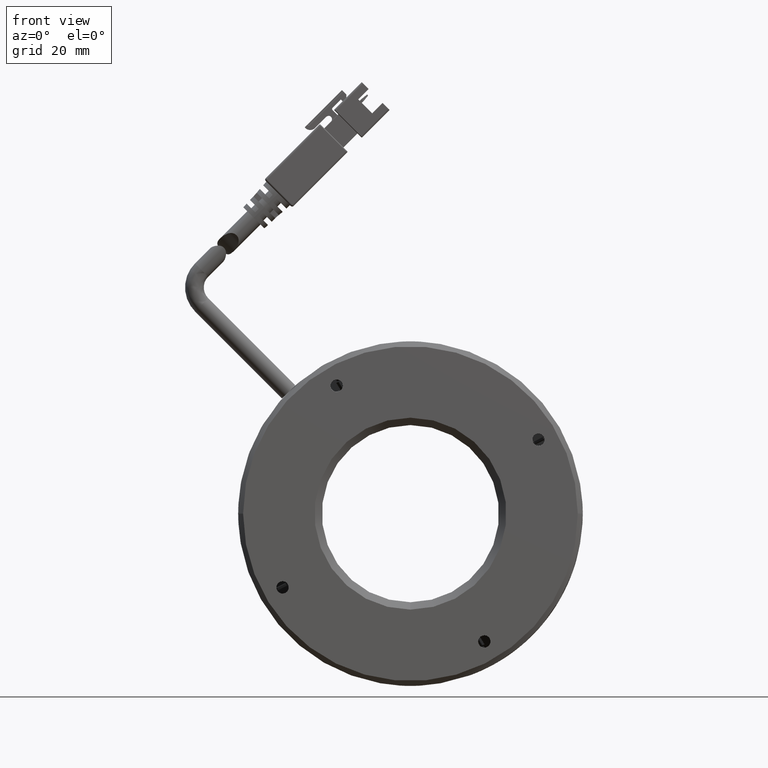
[diagram: clean part render]
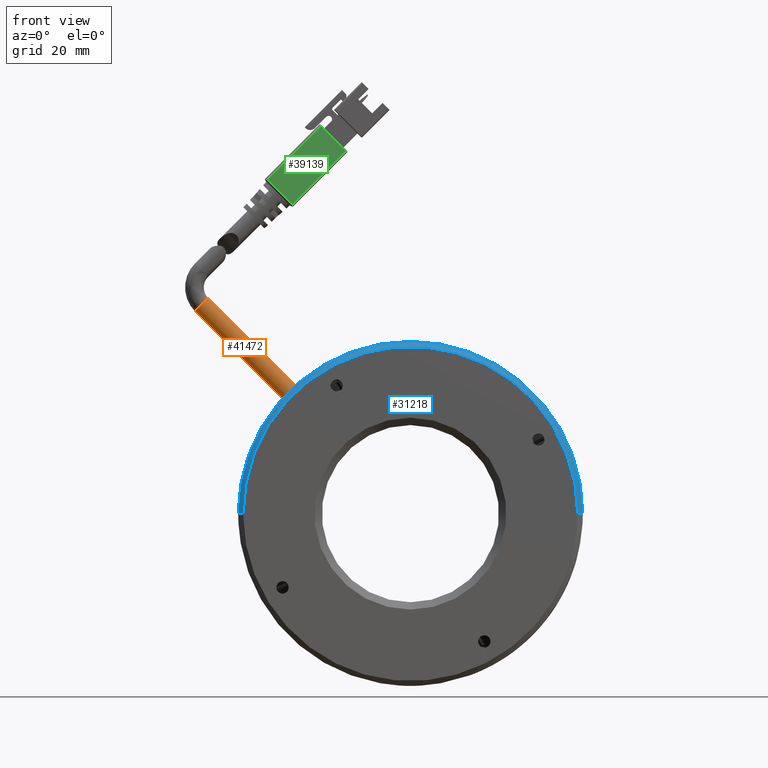
[diagram: same view with three faces highlighted in distinct colors, each labeled with its STEP entity id]
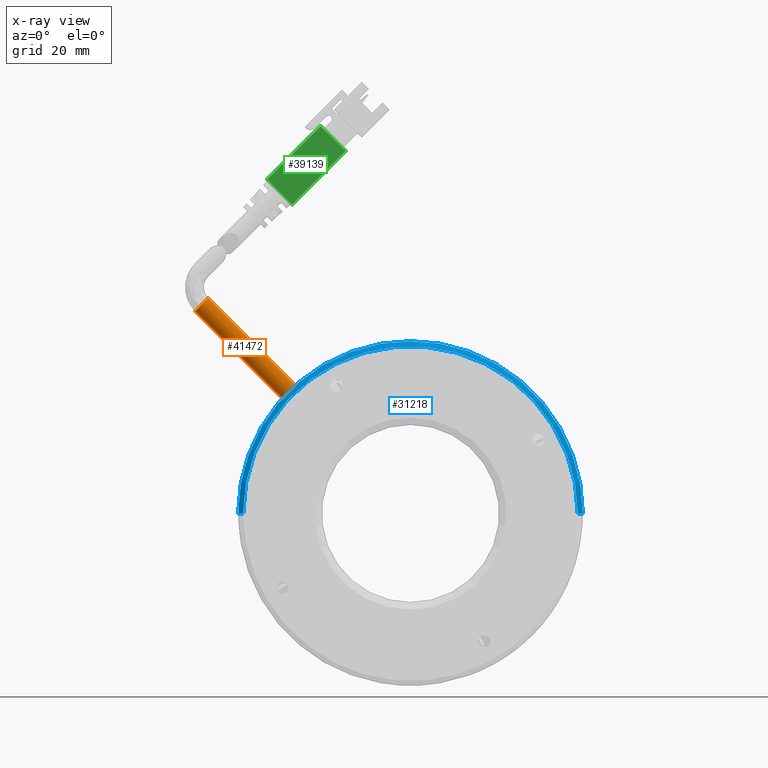
[diagram: x-ray of the same camera — body ghosted, the three highlighted faces saturated]
A machine part, front view with three faces highlighted in distinct colors.
The next image is the same camera in x-ray (body ghosted, the three faces saturated) — at least one of them is partly hidden behind the body in this view.
Their STEP definitions:

[orange] entity #41472 — the highlighted cylindrical surface (edge-blend (fillet) strip) has radius 1.9 mm, axis along (0.7071, 0, -0.7071).
#3004 = LINE ( 'NONE', #5040, #43240 ) ;
#3308 = EDGE_CURVE ( 'NONE', #68246, #29050, #66750, .T. ) ;
#4696 = DIRECTION ( 'NONE',  ( -0.7071067811865502400, 0.0000000000000000000, -0.7071067811865448000 ) ) ;
#4783 = CIRCLE ( 'NONE', #49398, 1.899999999999997700 ) ;
#5040 = CARTESIAN_POINT ( 'NONE',  ( -80.99367331583184200, -23.18693679055956400, 27.98047850198358000 ) ) ;
#7504 = CARTESIAN_POINT ( 'NONE',  ( -78.30666754732295900, -23.18693679055956400, 30.66748427049244800 ) ) ;
#8804 = CYLINDRICAL_SURFACE ( 'NONE', #35499, 1.899999999999997700 ) ;
#10492 = EDGE_CURVE ( 'NONE', #28485, #101849, #4783, .T. ) ;
#14499 = LINE ( 'NONE', #7504, #97623 ) ;
#15486 = DIRECTION ( 'NONE',  ( 0.7071067811865435800, 4.906538933385487800E-018, -0.7071067811865514600 ) ) ;
#16854 = EDGE_LOOP ( 'NONE', ( #72177, #80414, #34802, #66097 ) ) ;
#28485 = VERTEX_POINT ( 'NONE', #83220 ) ;
#29050 = VERTEX_POINT ( 'NONE', #33106 ) ;
#33106 = CARTESIAN_POINT ( 'NONE',  ( -60.62899801765937700, -23.18693679055956400, 12.98981474082866500 ) ) ;
#34802 = ORIENTED_EDGE ( 'NONE', *, *, #75086, .T. ) ;
#35499 = AXIS2_PLACEMENT_3D ( 'NONE', #83863, #92634, #4696 ) ;
#41472 = ADVANCED_FACE ( 'NONE', ( #80554 ), #8804, .T. ) ;
#43240 = VECTOR ( 'NONE', #69352, 1000.000000000000000 ) ;
#49398 = AXIS2_PLACEMENT_3D ( 'NONE', #95524, #95313, #95299 ) ;
#66097 = ORIENTED_EDGE ( 'NONE', *, *, #3308, .T. ) ;
#66750 = CIRCLE ( 'NONE', #81091, 1.900000000000001200 ) ;
#68246 = VERTEX_POINT ( 'NONE', #85190 ) ;
#68316 = DIRECTION ( 'NONE',  ( -0.7071067811865525700, 0.0000000000000000000, -0.7071067811865424700 ) ) ;
#68639 = DIRECTION ( 'NONE',  ( -0.7071067811865435800, -4.906538933385487800E-018, 0.7071067811865514600 ) ) ;
#68985 = CARTESIAN_POINT ( 'NONE',  ( -61.97250090191382600, -23.18693679055956400, 11.64631185657422700 ) ) ;
#69352 = DIRECTION ( 'NONE',  ( 0.7071067811865435800, 4.906538933385487800E-018, -0.7071067811865514600 ) ) ;
#72177 = ORIENTED_EDGE ( 'NONE', *, *, #101175, .F. ) ;
#75086 = EDGE_CURVE ( 'NONE', #101849, #68246, #3004, .T. ) ;
#80414 = ORIENTED_EDGE ( 'NONE', *, *, #10492, .T. ) ;
#80554 = FACE_OUTER_BOUND ( 'NONE', #16854, .T. ) ;
#81091 = AXIS2_PLACEMENT_3D ( 'NONE', #68985, #68639, #68316 ) ;
#82251 = CARTESIAN_POINT ( 'NONE',  ( -80.99367331583184200, -23.18693679055956700, 27.98047850198357300 ) ) ;
#83220 = CARTESIAN_POINT ( 'NONE',  ( -78.30666754732295900, -23.18693679055956700, 30.66748427049244100 ) ) ;
#83863 = CARTESIAN_POINT ( 'NONE',  ( -79.65017043157740800, -23.18693679055956400, 29.32398138623801400 ) ) ;
#85190 = CARTESIAN_POINT ( 'NONE',  ( -63.31600378616826700, -23.18693679055956400, 10.30280897231980000 ) ) ;
#92634 = DIRECTION ( 'NONE',  ( 0.7071067811865435800, 4.906538933385487800E-018, -0.7071067811865514600 ) ) ;
#95299 = DIRECTION ( 'NONE',  ( -0.7071067811865502400, 0.0000000000000000000, -0.7071067811865448000 ) ) ;
#95313 = DIRECTION ( 'NONE',  ( 0.7071067811865435800, 4.906538933385487800E-018, -0.7071067811865514600 ) ) ;
#95524 = CARTESIAN_POINT ( 'NONE',  ( -79.65017043157740800, -23.18693679055956400, 29.32398138623801000 ) ) ;
#97623 = VECTOR ( 'NONE', #15486, 1000.000000000000000 ) ;
#101175 = EDGE_CURVE ( 'NONE', #28485, #29050, #14499, .T. ) ;
#101849 = VERTEX_POINT ( 'NONE', #82251 ) ;

[blue] entity #31218 — the highlighted conical surface has half-angle 45 deg.
#4815 = VERTEX_POINT ( 'NONE', #88254 ) ;
#5184 = AXIS2_PLACEMENT_3D ( 'NONE', #65036, #73083, #57321 ) ;
#6065 = LINE ( 'NONE', #52131, #89143 ) ;
#6084 = EDGE_CURVE ( 'NONE', #40889, #4815, #35406, .T. ) ;
#10648 = EDGE_CURVE ( 'NONE', #37887, #54056, #19805, .T. ) ;
#16024 = AXIS2_PLACEMENT_3D ( 'NONE', #70412, #22225, #78519 ) ;
#19805 = CIRCLE ( 'NONE', #47359, 34.00000000000004300 ) ;
#21914 = DIRECTION ( 'NONE',  ( -0.0000000000000000000, -1.000000000000000000, -0.0000000000000000000 ) ) ;
#22225 = DIRECTION ( 'NONE',  ( -0.0000000000000000000, -1.000000000000000000, -0.0000000000000000000 ) ) ;
#25239 = ORIENTED_EDGE ( 'NONE', *, *, #42431, .T. ) ;
#30640 = ORIENTED_EDGE ( 'NONE', *, *, #102971, .T. ) ;
#31218 = ADVANCED_FACE ( 'NONE', ( #95363 ), #63935, .T. ) ;
#31653 = ORIENTED_EDGE ( 'NONE', *, *, #10648, .T. ) ;
#32247 = CARTESIAN_POINT ( 'NONE',  ( -72.22376356038468300, -25.73693679055961100, -13.10242548495533300 ) ) ;
#35406 = CIRCLE ( 'NONE', #64011, 35.00000000000000000 ) ;
#37887 = VERTEX_POINT ( 'NONE', #70057 ) ;
#40612 = CARTESIAN_POINT ( 'NONE',  ( -37.22376356038467500, -25.73693679055961100, -13.10242548495533300 ) ) ;
#40889 = VERTEX_POINT ( 'NONE', #101135 ) ;
#42431 = EDGE_CURVE ( 'NONE', #4815, #94470, #73777, .T. ) ;
#45373 = EDGE_LOOP ( 'NONE', ( #31653, #30640, #85228, #25239, #63888 ) ) ;
#47359 = AXIS2_PLACEMENT_3D ( 'NONE', #87630, #87513, #87502 ) ;
#52131 = CARTESIAN_POINT ( 'NONE',  ( -72.22376356038468300, -25.73693679055961400, -13.10242548495533300 ) ) ;
#54056 = VERTEX_POINT ( 'NONE', #94689 ) ;
#57321 = DIRECTION ( 'NONE',  ( -1.000000000000000000, 0.0000000000000000000, 0.0000000000000000000 ) ) ;
#57470 = VECTOR ( 'NONE', #69428, 1000.000000000000000 ) ;
#61394 = CARTESIAN_POINT ( 'NONE',  ( -2.223763560384672800, -25.73693679055961400, -13.10242548495532900 ) ) ;
#63888 = ORIENTED_EDGE ( 'NONE', *, *, #78407, .F. ) ;
#63935 = CONICAL_SURFACE ( 'NONE', #5184, 35.00000000000000000, 0.7853981633974422800 ) ;
#64011 = AXIS2_PLACEMENT_3D ( 'NONE', #40612, #21914, #81677 ) ;
#65036 = CARTESIAN_POINT ( 'NONE',  ( -37.22376356038467500, -25.73693679055961400, -13.10242548495533300 ) ) ;
#69428 = DIRECTION ( 'NONE',  ( 0.7071067811865432400, 0.7071067811865517900, 8.659560562354881100E-017 ) ) ;
#70057 = CARTESIAN_POINT ( 'NONE',  ( -71.22376356038472500, -26.73693679055958200, -13.10242548495533300 ) ) ;
#70412 = CARTESIAN_POINT ( 'NONE',  ( -37.22376356038467500, -25.73693679055961100, -13.10242548495533300 ) ) ;
#73083 = DIRECTION ( 'NONE',  ( 2.478176394252581700E-017, 1.000000000000000000, 0.0000000000000000000 ) ) ;
#73777 = CIRCLE ( 'NONE', #16024, 35.00000000000000000 ) ;
#78407 = EDGE_CURVE ( 'NONE', #37887, #94470, #6065, .T. ) ;
#78519 = DIRECTION ( 'NONE',  ( 0.0000000000000000000, -9.912705577010326800E-017, 1.000000000000000000 ) ) ;
#81336 = LINE ( 'NONE', #61394, #57470 ) ;
#81677 = DIRECTION ( 'NONE',  ( -7.930164461608261400E-016, -9.912705577010326800E-017, 1.000000000000000000 ) ) ;
#84799 = DIRECTION ( 'NONE',  ( -0.7071067811865432400, 0.7071067811865517900, 0.0000000000000000000 ) ) ;
#85228 = ORIENTED_EDGE ( 'NONE', *, *, #6084, .T. ) ;
#87502 = DIRECTION ( 'NONE',  ( -1.000000000000000000, 0.0000000000000000000, 0.0000000000000000000 ) ) ;
#87513 = DIRECTION ( 'NONE',  ( 2.478176394252581700E-017, 1.000000000000000000, 0.0000000000000000000 ) ) ;
#87630 = CARTESIAN_POINT ( 'NONE',  ( -37.22376356038467500, -26.73693679055958200, -13.10242548495533300 ) ) ;
#88254 = CARTESIAN_POINT ( 'NONE',  ( -37.22376356038466800, -25.73693679055961100, 21.89757451504467100 ) ) ;
#89143 = VECTOR ( 'NONE', #84799, 1000.000000000000000 ) ;
#94470 = VERTEX_POINT ( 'NONE', #32247 ) ;
#94689 = CARTESIAN_POINT ( 'NONE',  ( -3.223763560384632000, -26.73693679055958200, -13.10242548495532900 ) ) ;
#95363 = FACE_OUTER_BOUND ( 'NONE', #45373, .T. ) ;
#101135 = CARTESIAN_POINT ( 'NONE',  ( -2.223763560384672800, -25.73693679055961100, -13.10242548495532900 ) ) ;
#102971 = EDGE_CURVE ( 'NONE', #54056, #40889, #81336, .T. ) ;

[green] entity #39139 — the highlighted planar face has unit normal (-0, 1, -0).
#114 = CARTESIAN_POINT ( 'NONE',  ( -66.35656294527018400, -28.18693679055955700, 54.77982550895365000 ) ) ;
#3200 = ORIENTED_EDGE ( 'NONE', *, *, #4503, .F. ) ;
#4503 = EDGE_CURVE ( 'NONE', #16825, #99218, #102771, .T. ) ;
#7256 = CARTESIAN_POINT ( 'NONE',  ( -49.95168562174225000, -28.18693679055955300, 60.43667975844594100 ) ) ;
#15244 = DIRECTION ( 'NONE',  ( -0.7071067811865439100, -4.906538933385555600E-018, 0.7071067811865512400 ) ) ;
#15938 = VECTOR ( 'NONE', #82523, 999.9999999999998900 ) ;
#16788 = DIRECTION ( 'NONE',  ( -0.7071067811865439100, -4.906538933385555600E-018, 0.7071067811865512400 ) ) ;
#16825 = VERTEX_POINT ( 'NONE', #20001 ) ;
#16873 = CARTESIAN_POINT ( 'NONE',  ( -50.37594969045417800, -28.18693679055955000, 60.57810111468325700 ) ) ;
#18996 = EDGE_CURVE ( 'NONE', #99218, #61133, #80181, .T. ) ;
#20001 = CARTESIAN_POINT ( 'NONE',  ( -55.46711851499728900, -28.18693679055955300, 65.66926993922642500 ) ) ;
#25424 = EDGE_CURVE ( 'NONE', #86334, #16825, #53692, .T. ) ;
#26886 = CARTESIAN_POINT ( 'NONE',  ( -55.32569715875998600, -28.18693679055955300, 65.81069129546372700 ) ) ;
#28542 = VECTOR ( 'NONE', #16788, 999.9999999999998900 ) ;
#36077 = VECTOR ( 'NONE', #101016, 999.9999999999998900 ) ;
#39139 = ADVANCED_FACE ( 'NONE', ( #67355 ), #71211, .F. ) ;
#42603 = AXIS2_PLACEMENT_3D ( 'NONE', #7256, #63546, #15244 ) ;
#50272 = CARTESIAN_POINT ( 'NONE',  ( -50.23452833421686800, -28.18693679055955300, 60.71952247092056600 ) ) ;
#53692 = LINE ( 'NONE', #26886, #98931 ) ;
#57278 = EDGE_LOOP ( 'NONE', ( #3200, #64946, #77506, #59986 ) ) ;
#59986 = ORIENTED_EDGE ( 'NONE', *, *, #18996, .F. ) ;
#61133 = VERTEX_POINT ( 'NONE', #78734 ) ;
#63546 = DIRECTION ( 'NONE',  ( -1.734723475976807300E-016, 1.000000000000000000, -1.665334536937734800E-016 ) ) ;
#64946 = ORIENTED_EDGE ( 'NONE', *, *, #25424, .F. ) ;
#65044 = CARTESIAN_POINT ( 'NONE',  ( -60.98255140825244800, -28.18693679055955700, 49.40581397193585600 ) ) ;
#67355 = FACE_OUTER_BOUND ( 'NONE', #57278, .T. ) ;
#71211 = PLANE ( 'NONE',  #42603 ) ;
#71311 = LINE ( 'NONE', #65044, #28542 ) ;
#75121 = DIRECTION ( 'NONE',  ( 0.7071067811865512400, 2.404204077359530700E-016, 0.7071067811865439100 ) ) ;
#77506 = ORIENTED_EDGE ( 'NONE', *, *, #82265, .F. ) ;
#78734 = CARTESIAN_POINT ( 'NONE',  ( -61.26539412072706600, -28.18693679055955700, 49.68865668441047500 ) ) ;
#80181 = LINE ( 'NONE', #50272, #15938 ) ;
#82265 = EDGE_CURVE ( 'NONE', #61133, #86334, #71311, .T. ) ;
#82523 = DIRECTION ( 'NONE',  ( -0.7071067811865512400, -2.404204077359530700E-016, -0.7071067811865439100 ) ) ;
#86334 = VERTEX_POINT ( 'NONE', #114 ) ;
#94356 = CARTESIAN_POINT ( 'NONE',  ( -50.09310697797955900, -28.18693679055955300, 60.29525840220863100 ) ) ;
#98931 = VECTOR ( 'NONE', #75121, 999.9999999999998900 ) ;
#99218 = VERTEX_POINT ( 'NONE', #16873 ) ;
#101016 = DIRECTION ( 'NONE',  ( 0.7071067811865439100, 4.906538933385555600E-018, -0.7071067811865512400 ) ) ;
#102771 = LINE ( 'NONE', #94356, #36077 ) ;